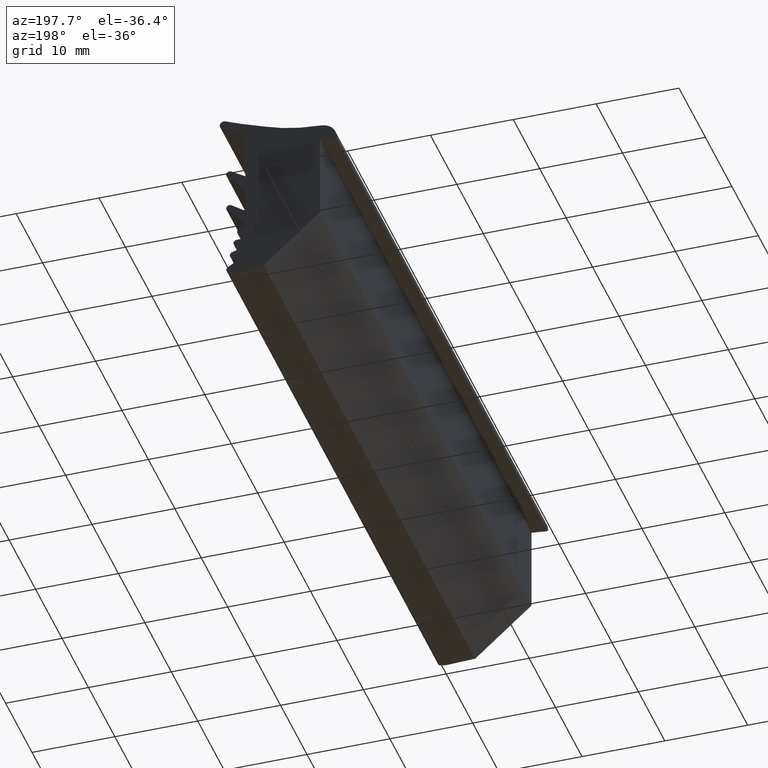
[diagram: clean part render]
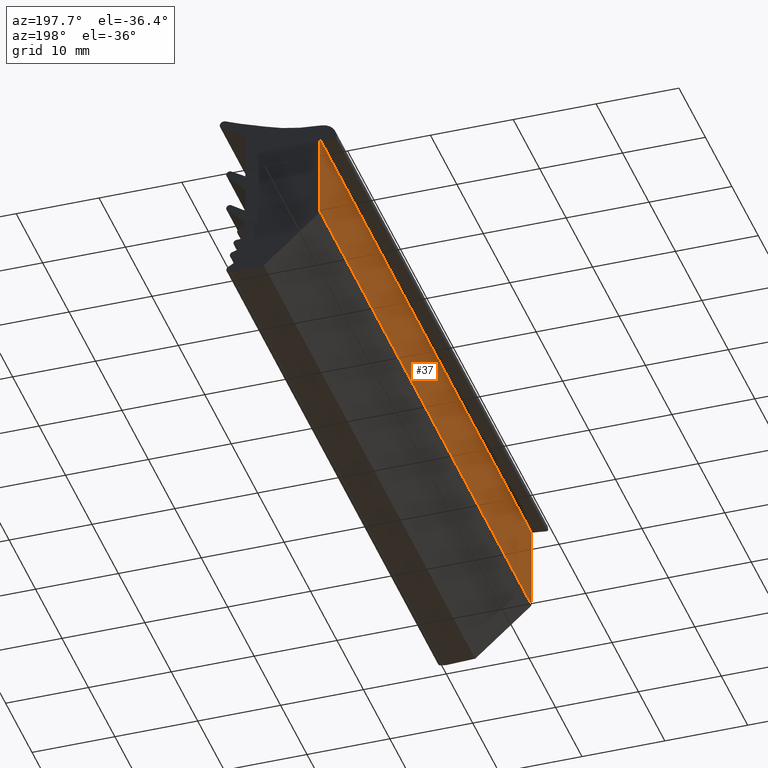
[diagram: same view with one face highlighted and labeled with its STEP entity id]
A machine part, auxiliary view. The second image highlights one B-rep face of the part: STEP entity #37.
In plain terms, the highlighted planar face has unit normal (1, -0, 0).
Its self-contained STEP definition (entity closure, byte-faithful):
#37 = ADVANCED_FACE ( 'NONE', ( #336 ), #926, .F. ) ;
#137 = VECTOR ( 'NONE', #1506, 1000.000000000000000 ) ;
#138 = LINE ( 'NONE', #1507, #137 ) ;
#170 = VECTOR ( 'NONE', #1638, 1000.000000000000000 ) ;
#171 = LINE ( 'NONE', #1566, #170 ) ;
#173 = VECTOR ( 'NONE', #1567, 1000.000000000000000 ) ;
#181 = LINE ( 'NONE', #1571, #173 ) ;
#336 = FACE_OUTER_BOUND ( 'NONE', #1803, .T. ) ;
#396 = AXIS2_PLACEMENT_3D ( 'NONE', #936, #911, #910 ) ;
#558 = EDGE_CURVE ( 'NONE', #1134, #1156, #181, .T. ) ;
#559 = EDGE_CURVE ( 'NONE', #1156, #1240, #171, .T. ) ;
#581 = EDGE_CURVE ( 'NONE', #1240, #1275, #138, .T. ) ;
#603 = EDGE_CURVE ( 'NONE', #1275, #1134, #1961, .T. ) ;
#910 = DIRECTION ( 'NONE',  ( 0.0000000000000000000, 0.0000000000000000000, -1.000000000000000000 ) ) ;
#911 = DIRECTION ( 'NONE',  ( 1.000000000000000000, -0.0000000000000000000, 0.0000000000000000000 ) ) ;
#926 = PLANE ( 'NONE',  #396 ) ;
#936 = CARTESIAN_POINT ( 'NONE',  ( -10.28746438811290000, 80.00200000000001000, 11.51741540469189900 ) ) ;
#1134 = VERTEX_POINT ( 'NONE', #1711 ) ;
#1156 = VERTEX_POINT ( 'NONE', #1685 ) ;
#1240 = VERTEX_POINT ( 'NONE', #1737 ) ;
#1275 = VERTEX_POINT ( 'NONE', #1724 ) ;
#1417 = CARTESIAN_POINT ( 'NONE',  ( -10.28746438811290000, 0.0000000000000000000, 11.51741540469189900 ) ) ;
#1418 = DIRECTION ( 'NONE',  ( 0.0000000000000000000, 0.0000000000000000000, -1.000000000000000000 ) ) ;
#1506 = DIRECTION ( 'NONE',  ( -0.0000000000000000000, -1.000000000000000000, -0.0000000000000000000 ) ) ;
#1507 = CARTESIAN_POINT ( 'NONE',  ( -10.28746438811290000, 80.00200000000001000, 16.59495219999630000 ) ) ;
#1566 = CARTESIAN_POINT ( 'NONE',  ( -10.28746438811290000, 80.00000000000999000, 11.51741540469189900 ) ) ;
#1567 = DIRECTION ( 'NONE',  ( 0.0000000000000000000, 1.000000000000000000, 0.0000000000000000000 ) ) ;
#1571 = CARTESIAN_POINT ( 'NONE',  ( -10.28746438811290000, 80.00200000000001000, 6.333625651317100300 ) ) ;
#1638 = DIRECTION ( 'NONE',  ( -0.0000000000000000000, -0.0000000000000000000, 1.000000000000000000 ) ) ;
#1685 = CARTESIAN_POINT ( 'NONE',  ( -10.28746438811290000, 80.00000000000999000, 6.333625651312100800 ) ) ;
#1711 = CARTESIAN_POINT ( 'NONE',  ( -10.28746438811290000, 0.0000000000000000000, 6.333625651312100800 ) ) ;
#1724 = CARTESIAN_POINT ( 'NONE',  ( -10.28746438811290000, 0.0000000000000000000, 16.59495219998799300 ) ) ;
#1737 = CARTESIAN_POINT ( 'NONE',  ( -10.28746438811290000, 80.00000000000500200, 16.59495219998799300 ) ) ;
#1792 = ORIENTED_EDGE ( 'NONE', *, *, #559, .F. ) ;
#1803 = EDGE_LOOP ( 'NONE', ( #1827, #1792, #1819, #1894 ) ) ;
#1819 = ORIENTED_EDGE ( 'NONE', *, *, #558, .F. ) ;
#1827 = ORIENTED_EDGE ( 'NONE', *, *, #581, .F. ) ;
#1894 = ORIENTED_EDGE ( 'NONE', *, *, #603, .F. ) ;
#1961 = LINE ( 'NONE', #1417, #1975 ) ;
#1975 = VECTOR ( 'NONE', #1418, 1000.000000000000000 ) ;